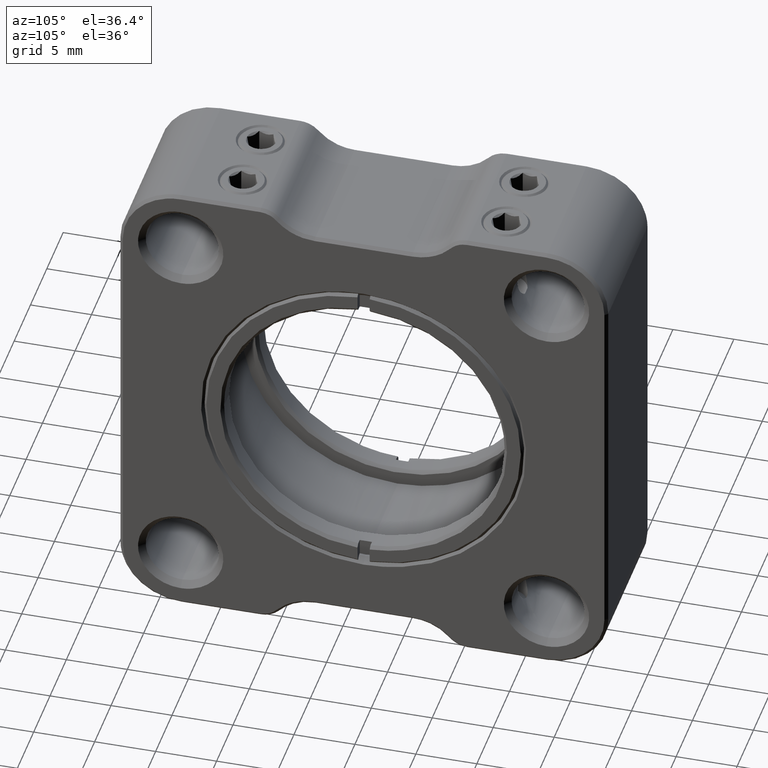
[diagram: clean part render]
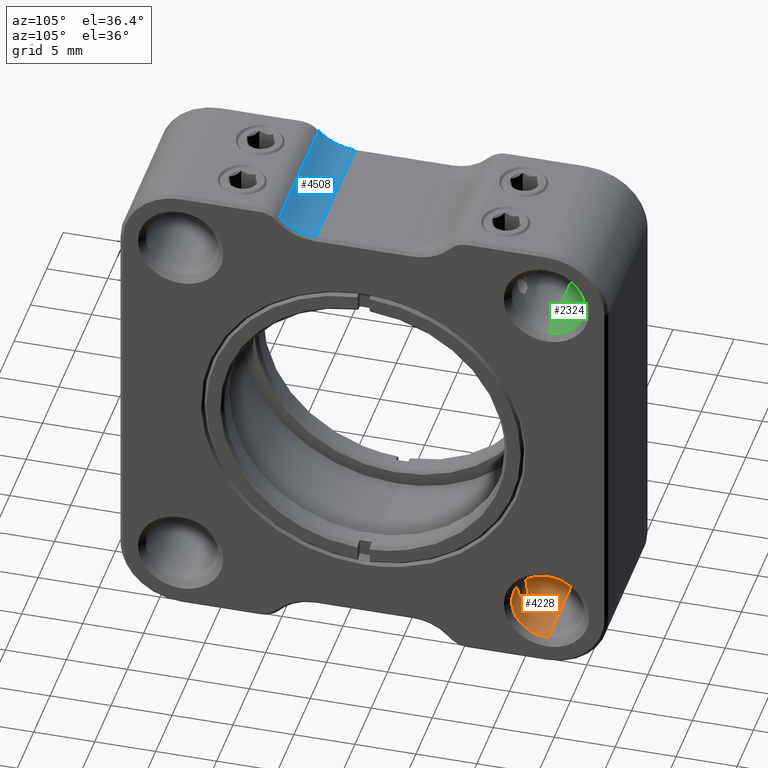
[diagram: same view with three faces highlighted in distinct colors, each labeled with its STEP entity id]
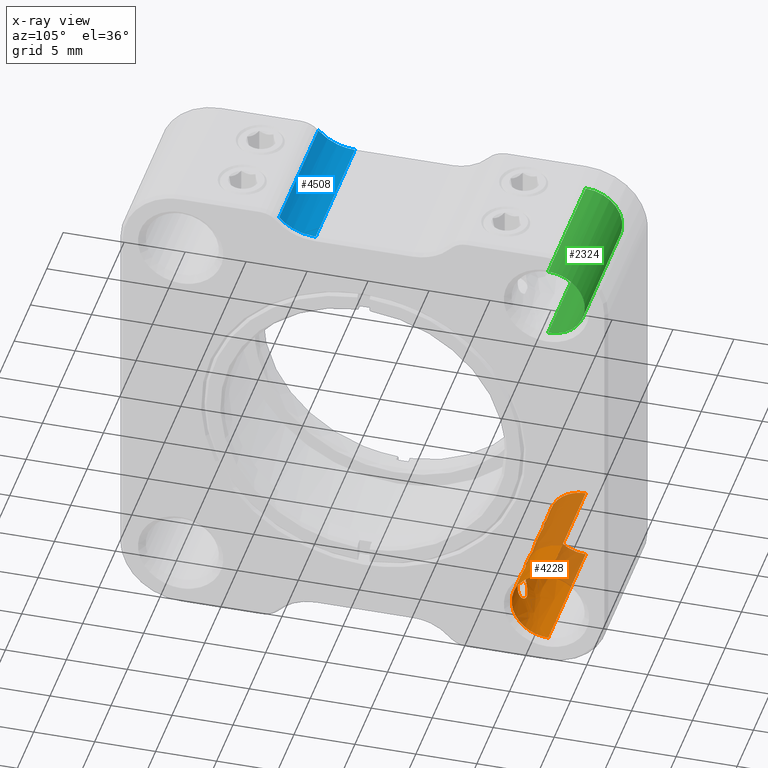
[diagram: x-ray of the same camera — body ghosted, the three highlighted faces saturated]
A machine part, auxiliary view with three faces highlighted in distinct colors.
The next image is the same camera in x-ray (body ghosted, the three faces saturated) — at least one of them is partly hidden behind the body in this view.
Their STEP definitions:

[orange] entity #4228 — the highlighted face is a freeform B-spline surface patch.
#34 = CARTESIAN_POINT ( 'NONE',  ( -12.25262887400384137, 14.53358202448511172, 23.46182062092848142 ) ) ;
#42 = CARTESIAN_POINT ( 'NONE',  ( -18.59430737897091035, 14.10746155510007682, 25.13367493556328469 ) ) ;
#93 = CARTESIAN_POINT ( 'NONE',  ( -12.98803797754453626, 14.19966360962455454, 24.26817190818023207 ) ) ;
#101 = CARTESIAN_POINT ( 'NONE',  ( -18.34169044953239336, 14.30469775038137215, 23.93288609939558853 ) ) ;
#154 = CARTESIAN_POINT ( 'NONE',  ( -12.78557639663588219, 14.33774293012212553, 26.14833280723340891 ) ) ;
#214 = CARTESIAN_POINT ( 'NONE',  ( -10.87246764228729923, 14.15056359219087589, 24.50200661620399600 ) ) ;
#235 = B_SPLINE_CURVE_WITH_KNOTS ( 'NONE', 1,
 ( #9235, #1890 ),
 .UNSPECIFIED., .F., .F.,
 ( 2, 2 ),
 ( 0.000000000000000000, 1.000000000000000000 ),
 .UNSPECIFIED. ) ;
#273 = B_SPLINE_CURVE_WITH_KNOTS ( 'NONE', 3,
 ( #1874, #4736, #1147, #7469 ),
 .UNSPECIFIED., .F., .F.,
 ( 4, 4 ),
 ( 0.000000000000000000, 1.000000000000000000 ),
 .UNSPECIFIED. ) ;
#274 = CARTESIAN_POINT ( 'NONE',  ( -12.88044855864925431, 14.27905518631657422, 24.00200246829884776 ) ) ;
#293 = CARTESIAN_POINT ( 'NONE',  ( -20.45960063692990261, 17.10930122340910131, 28.00000000000000000 ) ) ;
#438 = CARTESIAN_POINT ( 'NONE',  ( -18.52654711595964443, 14.16797507458910133, 25.59197895539838186 ) ) ;
#520 = VERTEX_POINT ( 'NONE', #9697 ) ;
#641 = CARTESIAN_POINT ( 'NONE',  ( -16.39915385318330721, 14.17346130316745167, 24.38139214740200700 ) ) ;
#688 = EDGE_CURVE ( 'NONE', #8241, #8076, #11129, .T. ) ;
#701 = CARTESIAN_POINT ( 'NONE',  ( -16.96346191434548345, 14.48306249049365846, 23.54988928702169204 ) ) ;
#762 = CARTESIAN_POINT ( 'NONE',  ( -18.16636738768076142, 14.40061392428326137, 23.70964000153847095 ) ) ;
#816 = CARTESIAN_POINT ( 'NONE',  ( -10.98668170599601268, 14.24197989447138468, 25.88250952784251879 ) ) ;
#822 = CARTESIAN_POINT ( 'NONE',  ( -16.73495620037148157, 14.39174476668270408, 26.27081948688023161 ) ) ;
#878 = CARTESIAN_POINT ( 'NONE',  ( -11.42048517167480703, 14.47026211184737221, 26.42797066612072854 ) ) ;
#883 = CARTESIAN_POINT ( 'NONE',  ( -16.94718901762852425, 14.47782071443305796, 23.55940860055300234 ) ) ;
#888 = CARTESIAN_POINT ( 'NONE',  ( -8.959600636929959450, 17.10930122340910131, 28.00000000000000000 ) ) ;
#933 = CARTESIAN_POINT ( 'NONE',  ( -12.63079420875968495, 14.42146845775170760, 26.34009055916668629 ) ) ;
#940 = CARTESIAN_POINT ( 'NONE',  ( -18.47459705293780985, 14.21030179623398126, 24.22697595954477379 ) ) ;
#993 = CARTESIAN_POINT ( 'NONE',  ( -11.44718901761471841, 14.47782071442860996, 23.55940860056367470 ) ) ;
#999 = CARTESIAN_POINT ( 'NONE',  ( -18.27246874449389580, 14.34525197973999155, 23.83364511821620724 ) ) ;
#1026 = EDGE_CURVE ( 'NONE', #8399, #8013, #7973, .T. ) ;
#1049 = CARTESIAN_POINT ( 'NONE',  ( -11.63098870628357240, 14.53371382485297580, 23.45884865012373410 ) ) ;
#1106 = CARTESIAN_POINT ( 'NONE',  ( -12.94614245696694255, 14.23200884503895658, 24.14956576262314769 ) ) ;
#1147 = CARTESIAN_POINT ( 'NONE',  ( -17.59140022189297170, 14.52761740423951764, 26.52839245611982122 ) ) ;
#1162 = CARTESIAN_POINT ( 'NONE',  ( -12.13207376816390948, 14.55227647972594518, 23.43079639372447076 ) ) ;
#1171 = EDGE_CURVE ( 'NONE', #11643, #8013, #4903, .T. ) ;
#1179 = FACE_BOUND ( 'NONE', #2190, .T. ) ;
#1374 = CARTESIAN_POINT ( 'NONE',  ( -12.35499939181899975, 14.51122501205579951, 26.50000000000000000 ) ) ;
#1475 = CARTESIAN_POINT ( 'NONE',  ( -17.06420188204090138, 14.51122501205579951, 26.50000000000000000 ) ) ;
#1506 = CARTESIAN_POINT ( 'NONE',  ( -20.45960063692991326, 11.10930122340910309, 22.00000000000001421 ) ) ;
#1596 = CARTESIAN_POINT ( 'NONE',  ( -16.81710982292614176, 14.42941934074558041, 23.65108306665503690 ) ) ;
#1654 = CARTESIAN_POINT ( 'NONE',  ( -17.75262887396024070, 14.53358202449297920, 23.46182062091871856 ) ) ;
#1708 = CARTESIAN_POINT ( 'NONE',  ( -11.24936720597554718, 14.39870795767063605, 26.28563152955916848 ) ) ;
#1714 = CARTESIAN_POINT ( 'NONE',  ( -16.69192916000470106, 14.36991016285383083, 26.22297459696130417 ) ) ;
#1828 = CARTESIAN_POINT ( 'NONE',  ( -12.98287405019457630, 14.20380082374903985, 25.74793581062802161 ) ) ;
#1857 = ORIENTED_EDGE ( 'NONE', *, *, #10409, .F. ) ;
#1874 = CARTESIAN_POINT ( 'NONE',  ( -17.06420188204090138, 14.51122501205579951, 26.50000000000000000 ) ) ;
#1889 = CARTESIAN_POINT ( 'NONE',  ( -12.66636738768628767, 14.40061392428063769, 23.70964000155425921 ) ) ;
#1890 = CARTESIAN_POINT ( 'NONE',  ( -20.45960063692990261, 17.10930122340910131, 28.00000000000000000 ) ) ;
#1896 = CARTESIAN_POINT ( 'NONE',  ( -18.51665680532770963, 14.17632015090679332, 25.63188263651609233 ) ) ;
#1948 = CARTESIAN_POINT ( 'NONE',  ( -12.77246874449553182, 14.34525197973906607, 23.83364511822115617 ) ) ;
#1999 = CARTESIAN_POINT ( 'NONE',  ( -11.07254154885250941, 14.30061804955210647, 23.94551366291485195 ) ) ;
#2059 = CARTESIAN_POINT ( 'NONE',  ( -10.89915385318442809, 14.17346130316838959, 24.38139214738272642 ) ) ;
#2121 = EDGE_LOOP ( 'NONE', ( #9498, #7796, #9202, #10872 ) ) ;
#2122 = CARTESIAN_POINT ( 'NONE',  ( -12.35499939181899975, 14.51122501205579951, 26.50000000000000000 ) ) ;
#2172 = CARTESIAN_POINT ( 'NONE',  ( -18.28557639665012147, 14.33774293011392054, 26.14833280720710817 ) ) ;
#2190 = EDGE_LOOP ( 'NONE', ( #8301, #8631 ) ) ;
#2246 = CARTESIAN_POINT ( 'NONE',  ( -8.959600636929959450, 17.10930122340910131, 22.00000000000000000 ) ) ;
#2303 = CARTESIAN_POINT ( 'NONE',  ( -20.45960063692990261, 17.10930122340910131, 22.00000000000000000 ) ) ;
#2491 = CARTESIAN_POINT ( 'NONE',  ( -16.38062323881584348, 14.15768252043823949, 24.46149670932013720 ) ) ;
#2547 = CARTESIAN_POINT ( 'NONE',  ( -11.56420188204089960, 14.51122501205579951, 26.50000000000000000 ) ) ;
#2553 = CARTESIAN_POINT ( 'NONE',  ( -16.36560387120196935, 14.14469603534065278, 25.46705120715436266 ) ) ;
#2603 = EDGE_CURVE ( 'NONE', #8241, #8076, #9008, .T. ) ;
#2612 = CARTESIAN_POINT ( 'NONE',  ( -17.54903844963694581, 14.55903438774773662, 23.42022599269795791 ) ) ;
#2666 = CARTESIAN_POINT ( 'NONE',  ( -10.82608864588799236, 14.10832342864082634, 24.96277841753453330 ) ) ;
#2673 = CARTESIAN_POINT ( 'NONE',  ( -16.45565571071853839, 14.21875385388558044, 25.80303900791119887 ) ) ;
#2725 = CARTESIAN_POINT ( 'NONE',  ( -17.92716270387990107, 14.49177345012306972, 23.53423861067438949 ) ) ;
#2773 = CARTESIAN_POINT ( 'NONE',  ( -11.79592361645600995, 14.55981156158672007, 23.41885204099245144 ) ) ;
#2829 = CARTESIAN_POINT ( 'NONE',  ( -11.02492861284226855, 14.26919731711929451, 24.03259404563061352 ) ) ;
#2837 = CARTESIAN_POINT ( 'NONE',  ( -18.29692037762362844, 14.33111677567705478, 26.13225326974684037 ) ) ;
#2889 = CARTESIAN_POINT ( 'NONE',  ( -11.31710982288401901, 14.42941934072777244, 23.65108306668920335 ) ) ;
#2951 = CARTESIAN_POINT ( 'NONE',  ( -12.93070428603525457, 14.24342243460140089, 24.11189739267000220 ) ) ;
#3013 = CARTESIAN_POINT ( 'NONE',  ( -11.41335266676700932, 14.46636005865272523, 23.58050295227905835 ) ) ;
#3062 = CARTESIAN_POINT ( 'NONE',  ( -18.56619096036804706, 14.13327824475831740, 25.38799204345440685 ) ) ;
#3090 = CARTESIAN_POINT ( 'NONE',  ( -20.45960063692991326, 11.10930122340910131, 22.00000000000001066 ) ) ;
#3108 = CARTESIAN_POINT ( 'NONE',  ( -11.82780105196693654, 14.52761740423951764, 26.52839245611982122 ) ) ;
#3165 = VERTEX_POINT ( 'NONE', #11559 ) ;
#3381 = CARTESIAN_POINT ( 'NONE',  ( -10.82836688898380118, 14.11050270685513119, 24.87986693128714322 ) ) ;
#3387 = CARTESIAN_POINT ( 'NONE',  ( -16.51146502824562390, 14.25983949144922569, 25.93935048850395120 ) ) ;
#3444 = CARTESIAN_POINT ( 'NONE',  ( -11.08645587244916442, 14.31009155878029127, 26.08194896094222059 ) ) ;
#3451 = CARTESIAN_POINT ( 'NONE',  ( -17.29592361651550192, 14.55981156158654066, 23.41885204100550411 ) ) ;
#3570 = CARTESIAN_POINT ( 'NONE',  ( -16.62993684945782746, 14.33665034933630800, 26.14747699684585669 ) ) ;
#3619 = CARTESIAN_POINT ( 'NONE',  ( -11.12993684946112261, 14.33665034933807192, 26.14747699685290527 ) ) ;
#3622 = CARTESIAN_POINT ( 'NONE',  ( -11.56420188204089960, 14.51122501205579951, 26.50000000000000000 ) ) ;
#3626 = CARTESIAN_POINT ( 'NONE',  ( -16.79356502561259745, 14.41925233205222590, 26.32848355505742077 ) ) ;
#3676 = CARTESIAN_POINT ( 'NONE',  ( -12.51432571737983146, 14.46496900332419244, 23.58237014539562537 ) ) ;
#3734 = CARTESIAN_POINT ( 'NONE',  ( -13.06619096037050198, 14.13327824475605077, 25.38799204345709626 ) ) ;
#3741 = CARTESIAN_POINT ( 'NONE',  ( -18.35034537796843779, 14.29840156239237459, 26.04911163112564054 ) ) ;
#3789 = CARTESIAN_POINT ( 'NONE',  ( -12.57845656640085075, 14.44019919047957679, 23.62862706985244543 ) ) ;
#3852 = CARTESIAN_POINT ( 'NONE',  ( -13.07264073305299412, 14.12746394021304752, 24.62990948602973873 ) ) ;
#3908 = CARTESIAN_POINT ( 'NONE',  ( -12.75087912656180933, 14.35726782066725704, 26.19432004937850067 ) ) ;
#3926 = CARTESIAN_POINT ( 'NONE',  ( -20.45960063692991326, 11.10930122340910131, 27.99999999999998934 ) ) ;
#4072 = CARTESIAN_POINT ( 'NONE',  ( -17.85499939181899975, 14.51122501205579951, 26.50000000000000000 ) ) ;
#4150 = CARTESIAN_POINT ( 'NONE',  ( -20.45960063692990261, 17.10930122340910131, 22.00000000000000000 ) ) ;
#4228 = ADVANCED_FACE ( 'NONE', ( #9362, #1179, #4824 ), #6774, .T. ) ;
#4279 = CARTESIAN_POINT ( 'NONE',  ( -10.85230705488143244, 14.13263874546639975, 25.38243964333958758 ) ) ;
#4284 = CARTESIAN_POINT ( 'NONE',  ( -16.70676952334188314, 14.37763147673853226, 26.24013933317395342 ) ) ;
#4347 = CARTESIAN_POINT ( 'NONE',  ( -16.35230705487830605, 14.13263874546352739, 25.38243964338701630 ) ) ;
#4407 = CARTESIAN_POINT ( 'NONE',  ( -18.23420411326712909, 14.36625498263014578, 23.78490247463961893 ) ) ;
#4469 = CARTESIAN_POINT ( 'NONE',  ( -17.79215281703012863, 14.52593018047548590, 23.47469013426653106 ) ) ;
#4519 = CARTESIAN_POINT ( 'NONE',  ( -11.20676952334409648, 14.37763147673967445, 26.24013933317499436 ) ) ;
#4524 = CARTESIAN_POINT ( 'NONE',  ( -17.86941807337634103, 14.50771763697471783, 23.50611739559175817 ) ) ;
#4555 = EDGE_CURVE ( 'NONE', #11643, #3165, #235, .T. ) ;
#4579 = CARTESIAN_POINT ( 'NONE',  ( -11.22818040090955805, 14.38975337909512398, 23.73187906406898406 ) ) ;
#4585 = CARTESIAN_POINT ( 'NONE',  ( -18.59705878920894762, 14.10469555667444652, 24.96715504196764002 ) ) ;
#4634 = CARTESIAN_POINT ( 'NONE',  ( -12.35025005273416987, 14.51251302110160246, 23.49778656071450911 ) ) ;
#4691 = CARTESIAN_POINT ( 'NONE',  ( -12.82985403283880821, 14.31137621363409984, 26.08310000696892672 ) ) ;
#4736 = CARTESIAN_POINT ( 'NONE',  ( -17.32780105196694009, 14.52761740423951764, 26.52839245611981411 ) ) ;
#4750 = CARTESIAN_POINT ( 'NONE',  ( -12.73420411327069246, 14.36625498262824685, 23.78490247465015628 ) ) ;
#4808 = CARTESIAN_POINT ( 'NONE',  ( -10.97415601042787259, 14.23335394188370984, 24.14251974891486086 ) ) ;
#4824 = FACE_OUTER_BOUND ( 'NONE', #2121, .T. ) ;
#4849 = CARTESIAN_POINT ( 'NONE',  ( -18.48803797754281319, 14.19966360962595608, 24.26817190816621306 ) ) ;
#4903 =( BOUNDED_CURVE ( )  B_SPLINE_CURVE ( 3, ( #9061, #9771, #7914, #11551 ),
 .UNSPECIFIED., .F., .F. ) 
 B_SPLINE_CURVE_WITH_KNOTS ( ( 4, 4 ),
 ( 0.000000000000000000, 1.000000000000000000 ),
 .UNSPECIFIED. ) 
 CURVE ( )  GEOMETRIC_REPRESENTATION_ITEM ( )  RATIONAL_B_SPLINE_CURVE ( ( 1.000000000000000000, 0.3333333333333329818, 0.3333333333333329818, 1.000000000000000000 ) ) 
 REPRESENTATION_ITEM ( '' )  );
#4964 = CARTESIAN_POINT ( 'NONE',  ( -18.28557650064970730, 14.33773865347519383, 23.85167428068081819 ) ) ;
#5168 = CARTESIAN_POINT ( 'NONE',  ( -10.90047237521796397, 14.17471680337231987, 25.62881491204115036 ) ) ;
#5169 = CARTESIAN_POINT ( 'NONE',  ( -8.959600636929952344, 11.10930122340910131, 22.00000000000001066 ) ) ;
#5174 = CARTESIAN_POINT ( 'NONE',  ( -16.32608864589259312, 14.10832342864517486, 24.96277841746345771 ) ) ;
#5238 = CARTESIAN_POINT ( 'NONE',  ( -16.84813669375799705, 14.44221069357771015, 23.62609695000169552 ) ) ;
#5289 = CARTESIAN_POINT ( 'NONE',  ( -10.84102091145197200, 14.12229512037430723, 24.70867478441958909 ) ) ;
#5299 = CARTESIAN_POINT ( 'NONE',  ( -17.85025005270566822, 14.51251302110858887, 23.49778656070799343 ) ) ;
#5354 = CARTESIAN_POINT ( 'NONE',  ( -16.42221087055679263, 14.19283859094603883, 25.70747960096321094 ) ) ;
#5414 = CARTESIAN_POINT ( 'NONE',  ( -16.46341042469103044, 14.22467058531094253, 25.82406545597264369 ) ) ;
#5468 = CARTESIAN_POINT ( 'NONE',  ( -12.90773975263167372, 14.26046220533579501, 25.94348790201122767 ) ) ;
#5478 = CARTESIAN_POINT ( 'NONE',  ( -18.44614245698508981, 14.23200884502536923, 24.14956576265953103 ) ) ;
#5527 = CARTESIAN_POINT ( 'NONE',  ( -11.10370973166637221, 14.32001142101341173, 23.89535795442018085 ) ) ;
#5589 = CARTESIAN_POINT ( 'NONE',  ( -12.99452626272070077, 14.19446022324795820, 25.71069699734150760 ) ) ;
#5641 = CARTESIAN_POINT ( 'NONE',  ( -11.17444431252291892, 14.36161106474641080, 23.79352659220378641 ) ) ;
#5680 = CARTESIAN_POINT ( 'NONE',  ( -12.09140022189296992, 14.52761740423951764, 26.52839245611982122 ) ) ;
#5701 = CARTESIAN_POINT ( 'NONE',  ( -11.39678542886688639, 14.46044239717635271, 23.59153659875433462 ) ) ;
#5786 = VERTEX_POINT ( 'NONE', #6879 ) ;
#5810 = CARTESIAN_POINT ( 'NONE',  ( -18.57264073305221075, 14.12746394021379182, 24.62990948598766749 ) ) ;
#6129 = CARTESIAN_POINT ( 'NONE',  ( -16.40047237519726053, 14.17471680335498796, 25.62881491197807904 ) ) ;
#6190 = CARTESIAN_POINT ( 'NONE',  ( -17.63207376811955740, 14.55227647973060812, 23.43079639371470435 ) ) ;
#6248 = CARTESIAN_POINT ( 'NONE',  ( -18.01432571737581867, 14.46496900332542701, 23.58237014538510223 ) ) ;
#6315 = CARTESIAN_POINT ( 'NONE',  ( -16.52921605718029241, 14.27216892411096971, 25.97596197332747536 ) ) ;
#6368 = CARTESIAN_POINT ( 'NONE',  ( -11.19192916000388749, 14.36991016285338851, 26.22297459695949229 ) ) ;
#6374 = CARTESIAN_POINT ( 'NONE',  ( -18.07845656639510779, 14.44019919048190204, 23.62862706983665007 ) ) ;
#6422 = CARTESIAN_POINT ( 'NONE',  ( -12.40733057018516838, 14.49751508471321593, 23.52404311750225929 ) ) ;
#6429 = CARTESIAN_POINT ( 'NONE',  ( -18.25087912655805056, 14.35726782066926077, 26.19432004938035874 ) ) ;
#6479 = CARTESIAN_POINT ( 'NONE',  ( -11.34813669371881772, 14.44221069356224696, 23.62609695003300558 ) ) ;
#6537 = CARTESIAN_POINT ( 'NONE',  ( -12.04903844966670334, 14.55903438774765135, 23.42022599270445937 ) ) ;
#6592 = CARTESIAN_POINT ( 'NONE',  ( -12.76213076858724982, 14.35104567125037001, 26.17988211518229491 ) ) ;
#6646 = CARTESIAN_POINT ( 'NONE',  ( -18.00333251472570595, 14.47461232640758766, 26.43658496825579718 ) ) ;
#6652 = CARTESIAN_POINT ( 'NONE',  ( -13.02654711596352222, 14.16797507458580974, 25.59197895540241419 ) ) ;
#6704 = CARTESIAN_POINT ( 'NONE',  ( -18.54541375035087469, 14.15308782247098129, 24.46479407687705532 ) ) ;
#6730 = CARTESIAN_POINT ( 'NONE',  ( -20.45960063692990261, 17.10930122340910131, 22.00000000000000000 ) ) ;
#6733 = ORIENTED_EDGE ( 'NONE', *, *, #10969, .T. ) ;
#6774 =( BOUNDED_SURFACE ( )  B_SPLINE_SURFACE ( 1, 3, ( 
 ( #293, #3926, #3090, #6730 ),
 ( #7568, #10380, #5169, #7864 ) ),
 .UNSPECIFIED., .F., .F., .F. ) 
 B_SPLINE_SURFACE_WITH_KNOTS ( ( 2, 2 ),
 ( 4, 4 ),
 ( 0.000000000000000000, 1.000000000000000000 ),
 ( 0.000000000000000000, 1.000000000000000000 ),
 .UNSPECIFIED. ) 
 GEOMETRIC_REPRESENTATION_ITEM ( )  RATIONAL_B_SPLINE_SURFACE ( (
 ( 1.000000000000000000, 0.3333333333333329818, 0.3333333333333329818, 1.000000000000000000),
 ( 1.000000000000000000, 0.3333333333333329818, 0.3333333333333329818, 1.000000000000000000) ) ) 
 REPRESENTATION_ITEM ( '' )  SURFACE ( )  );
#6818 = CARTESIAN_POINT ( 'NONE',  ( -18.55294322343230817, 14.14527881202999282, 25.47077840992680109 ) ) ;
#6879 = CARTESIAN_POINT ( 'NONE',  ( -17.85499939181899975, 14.51122501205579951, 26.50000000000000000 ) ) ;
#7023 = CARTESIAN_POINT ( 'NONE',  ( -16.67444431254843451, 14.36161106476135174, 23.79352659218101351 ) ) ;
#7081 = CARTESIAN_POINT ( 'NONE',  ( -10.96341042469235560, 14.22467058531194262, 25.82406545597594416 ) ) ;
#7087 = CARTESIAN_POINT ( 'NONE',  ( -16.35111694672353266, 14.13164551751133047, 24.62490921486102025 ) ) ;
#7149 = CARTESIAN_POINT ( 'NONE',  ( -16.47872784594637707, 14.23613205855680697, 25.86324191870711076 ) ) ;
#7204 = CARTESIAN_POINT ( 'NONE',  ( -10.86560387122197113, 14.14469603535837372, 25.46705120721741977 ) ) ;
#7208 = CARTESIAN_POINT ( 'NONE',  ( -16.58645587244449970, 14.31009155877738159, 26.08194896093162640 ) ) ;
#7258 = CARTESIAN_POINT ( 'NONE',  ( -11.02921605718476172, 14.27216892411402327, 25.97596197333806245 ) ) ;
#7263 = CARTESIAN_POINT ( 'NONE',  ( -16.61367097185330977, 14.32602328412040649, 23.88031541473005959 ) ) ;
#7311 = CARTESIAN_POINT ( 'NONE',  ( -12.97459705292654597, 14.21030179624282752, 24.22697595952161365 ) ) ;
#7373 = CARTESIAN_POINT ( 'NONE',  ( -13.01665680533131031, 14.17632015090379838, 25.63188263651978005 ) ) ;
#7431 = CARTESIAN_POINT ( 'NONE',  ( -11.08269021857582359, 14.30704248040900772, 23.92860657799907997 ) ) ;
#7469 = CARTESIAN_POINT ( 'NONE',  ( -17.85499939181899975, 14.51122501205579951, 26.50000000000000000 ) ) ;
#7488 = CARTESIAN_POINT ( 'NONE',  ( -13.09430737896599339, 14.10746155510457989, 25.13367493555788812 ) ) ;
#7550 = CARTESIAN_POINT ( 'NONE',  ( -11.04313908585015547, 14.28157800714855519, 23.99708323704114576 ) ) ;
#7568 = CARTESIAN_POINT ( 'NONE',  ( -8.959600636929959450, 17.10930122340910131, 28.00000000000000000 ) ) ;
#7796 = ORIENTED_EDGE ( 'NONE', *, *, #1171, .T. ) ;
#7864 = CARTESIAN_POINT ( 'NONE',  ( -8.959600636929959450, 17.10930122340910131, 22.00000000000000000 ) ) ;
#7914 = CARTESIAN_POINT ( 'NONE',  ( -8.959600636929952344, 11.10930122340910309, 22.00000000000001421 ) ) ;
#7924 = CARTESIAN_POINT ( 'NONE',  ( -10.82888067415516531, 14.11095676817109279, 25.13090013560021418 ) ) ;
#7931 = CARTESIAN_POINT ( 'NONE',  ( -16.34102091145075164, 14.12229512037317924, 24.70867478444158749 ) ) ;
#7973 = B_SPLINE_CURVE_WITH_KNOTS ( 'NONE', 1,
 ( #4150, #2246 ),
 .UNSPECIFIED., .F., .F.,
 ( 2, 2 ),
 ( 0.000000000000000000, 1.000000000000000000 ),
 .UNSPECIFIED. ) ;
#7984 = CARTESIAN_POINT ( 'NONE',  ( -11.32431822901474483, 14.43248944461528005, 26.35493943535526284 ) ) ;
#7991 = CARTESIAN_POINT ( 'NONE',  ( -16.54313908584507686, 14.28157800714518189, 23.99708323703148594 ) ) ;
#8013 = VERTEX_POINT ( 'NONE', #10928 ) ;
#8052 = CARTESIAN_POINT ( 'NONE',  ( -18.24717489643710167, 14.35927912691784591, 23.80082703513670239 ) ) ;
#8076 = VERTEX_POINT ( 'NONE', #8761 ) ;
#8109 = CARTESIAN_POINT ( 'NONE',  ( -16.91335266679157812, 14.46636005866128194, 23.58050295225984883 ) ) ;
#8141 = CARTESIAN_POINT ( 'NONE',  ( -20.45960063692990261, 17.10930122340910131, 28.00000000000000000 ) ) ;
#8167 = CARTESIAN_POINT ( 'NONE',  ( -16.57254154884875064, 14.30061804954971727, 23.94551366290784244 ) ) ;
#8214 = CARTESIAN_POINT ( 'NONE',  ( -12.42716270387892052, 14.49177345012337170, 23.53423861067175693 ) ) ;
#8222 = CARTESIAN_POINT ( 'NONE',  ( -18.48287405018718133, 14.20380082375475617, 25.74793581064359316 ) ) ;
#8241 = VERTEX_POINT ( 'NONE', #3622 ) ;
#8274 = CARTESIAN_POINT ( 'NONE',  ( -12.84169044951770999, 14.30469775039002123, 23.93288609936913147 ) ) ;
#8301 = ORIENTED_EDGE ( 'NONE', *, *, #688, .T. ) ;
#8313 = EDGE_LOOP ( 'NONE', ( #6733, #1857 ) ) ;
#8335 = CARTESIAN_POINT ( 'NONE',  ( -12.79692037760686851, 14.33111677568691178, 26.13225326977800478 ) ) ;
#8392 = CARTESIAN_POINT ( 'NONE',  ( -12.74717489644007529, 14.35927912691621700, 23.80082703514558062 ) ) ;
#8399 = VERTEX_POINT ( 'NONE', #2303 ) ;
#8453 = CARTESIAN_POINT ( 'NONE',  ( -12.36941807340027033, 14.50771763696851480, 23.50611739559725422 ) ) ;
#8618 = CARTESIAN_POINT ( 'NONE',  ( -18.43070428605533806, 14.24342243458677082, 24.11189739270969312 ) ) ;
#8631 = ORIENTED_EDGE ( 'NONE', *, *, #2603, .F. ) ;
#8684 = B_SPLINE_CURVE_WITH_KNOTS ( 'NONE', 3,
 ( #1475, #8890, #11756, #10748, #3626, #9909, #822, #4284, #1714, #3570, #7208, #6315, #3387, #10863, #7149, #5414, #2673, #5354, #6129, #2553, #4347, #11693, #10681, #5174, #9785, #7931, #7087, #9069, #2491, #641, #8827, #9968, #11566, #9847, #7991, #8167, #11818, #11632, #7263, #7023, #9013, #1596, #5238, #10804, #8109, #883, #701, #10926, #3451, #2612, #6190, #1654, #4469, #5299, #4524, #8951, #2725, #6248, #6374, #762, #10030, #4407, #8052, #999, #4964, #101, #10093, #8618, #5478, #940, #4849, #6704, #5810, #4585, #42, #3062, #6818, #438, #1896, #11244, #8222, #10977, #10356, #3741, #9512, #2837, #2172, #11359, #6429, #9452, #6646, #4072 ),
 .UNSPECIFIED., .F., .F.,
 ( 4, 2, 2, 2, 2, 2, 2, 2, 2, 2, 2, 2, 2, 2, 2, 2, 2, 2, 2, 2, 2, 2, 2, 2, 2, 2, 2, 2, 2, 2, 2, 2, 2, 2, 2, 2, 2, 2, 2, 2, 2, 2, 2, 2, 2, 4 ),
 ( 0.000000000000000000, 0.03125000000000671685, 0.04687500000001005446, 0.05468750000001182388, 0.06250000000001358635, 0.09375000000002081668, 0.1093750000000249800, 0.1171875000000265066, 0.1250000000000280331, 0.1562500000000329459, 0.1875000000000378586, 0.2187500000000427713, 0.2500000000000476841, 0.2812500000000525691, 0.2968750000000550116, 0.3125000000000575096, 0.3437500000000635603, 0.3593750000000670020, 0.3671875000000687783, 0.3750000000000704992, 0.4062500000000748290, 0.4218750000000769385, 0.4296875000000771605, 0.4375000000000773270, 0.5000000000000732747, 0.5312500000000711653, 0.5468750000000696110, 0.5546875000000681677, 0.5625000000000667244, 0.5937500000000612843, 0.6093750000000591749, 0.6171875000000581757, 0.6250000000000571765, 0.6562500000000512923, 0.6718750000000487388, 0.6875000000000460743, 0.7500000000000348610, 0.8125000000000236478, 0.8437500000000178746, 0.8593750000000148770, 0.8750000000000117684, 0.9062500000000065503, 0.9218750000000043299, 0.9296875000000034417, 0.9375000000000025535, 1.000000000000000000 ),
 .UNSPECIFIED. ) ;
#8761 = CARTESIAN_POINT ( 'NONE',  ( -12.35499939181899975, 14.51122501205579951, 26.50000000000000000 ) ) ;
#8798 = CARTESIAN_POINT ( 'NONE',  ( -20.45960063692991326, 11.10930122340910309, 27.99999999999998934 ) ) ;
#8821 = CARTESIAN_POINT ( 'NONE',  ( -10.95565571071493238, 14.21875385388278445, 25.80303900790065796 ) ) ;
#8827 = CARTESIAN_POINT ( 'NONE',  ( -16.40892896049545158, 14.18163544037074608, 24.34382673447668211 ) ) ;
#8890 = CARTESIAN_POINT ( 'NONE',  ( -16.98984146273704354, 14.49287081979387537, 26.46820960647052345 ) ) ;
#8951 = CARTESIAN_POINT ( 'NONE',  ( -17.90733057017199314, 14.49751508471699779, 23.52404311749921817 ) ) ;
#9007 = CARTESIAN_POINT ( 'NONE',  ( -10.92221087057120421, 14.19283859095720501, 25.70747960100524310 ) ) ;
#9008 = B_SPLINE_CURVE_WITH_KNOTS ( 'NONE', 3,
 ( #2547, #10800, #878, #7984, #10025, #1708, #11626, #4519, #6368, #3619, #3444, #7258, #10739, #816, #10918, #7081, #8821, #9007, #5168, #7204, #4279, #10857, #7924, #2666, #3381, #5289, #10191, #214, #11086, #2059, #10087, #9345, #4808, #2829, #7550, #1999, #7431, #5527, #11198, #5641, #4579, #2889, #6479, #5701, #3013, #993, #9289, #1049, #2773, #6537, #1162, #34, #10971, #4634, #8453, #6422, #8214, #3676, #3789, #1889, #11029, #4750, #8392, #1948, #9180, #8274, #274, #2951, #1106, #7311, #93, #10246, #3852, #10138, #7488, #3734, #11142, #6652, #7373, #5589, #1828, #9234, #5468, #9120, #4691, #8335, #154, #6592, #3908, #933, #10306, #2122 ),
 .UNSPECIFIED., .F., .F.,
 ( 4, 2, 2, 2, 2, 2, 2, 2, 2, 2, 2, 2, 2, 2, 2, 2, 2, 2, 2, 2, 2, 2, 2, 2, 2, 2, 2, 2, 2, 2, 2, 2, 2, 2, 2, 2, 2, 2, 2, 2, 2, 2, 2, 2, 2, 4 ),
 ( 0.000000000000000000, 0.03125000000000053429, 0.04687500000000042327, 0.05468750000000079103, 0.06250000000000115186, 0.09375000000000340006, 0.1093750000000038303, 0.1171875000000034833, 0.1250000000000031641, 0.1562500000000047462, 0.1875000000000063560, 0.2187500000000079381, 0.2500000000000094924, 0.2812500000000111022, 0.2968750000000124900, 0.3125000000000139333, 0.3437500000000168199, 0.3593750000000183187, 0.3671875000000184297, 0.3750000000000185962, 0.4062500000000198175, 0.4218750000000199285, 0.4296875000000203171, 0.4375000000000207612, 0.5000000000000276446, 0.5312500000000308642, 0.5468750000000320854, 0.5546875000000329736, 0.5625000000000339728, 0.5937500000000366374, 0.6093750000000375255, 0.6171875000000374145, 0.6250000000000373035, 0.6562500000000356382, 0.6718750000000345279, 0.6875000000000335287, 0.7500000000000293099, 0.8125000000000249800, 0.8437500000000234257, 0.8593750000000226485, 0.8750000000000219824, 0.9062500000000190958, 0.9218750000000174305, 0.9296875000000163203, 0.9375000000000152101, 1.000000000000000000 ),
 .UNSPECIFIED. ) ;
#9013 = CARTESIAN_POINT ( 'NONE',  ( -16.72818040095006964, 14.38975337911515062, 23.73187906403481762 ) ) ;
#9061 = CARTESIAN_POINT ( 'NONE',  ( -8.959600636929959450, 17.10930122340910131, 28.00000000000000000 ) ) ;
#9069 = CARTESIAN_POINT ( 'NONE',  ( -16.37246764228541807, 14.15056359218921145, 24.50200661623700071 ) ) ;
#9120 = CARTESIAN_POINT ( 'NONE',  ( -12.85034537794416387, 14.29840156240794258, 26.04911163117238004 ) ) ;
#9180 = CARTESIAN_POINT ( 'NONE',  ( -12.78557650065339324, 14.33773865347303378, 23.85167428068744755 ) ) ;
#9202 = ORIENTED_EDGE ( 'NONE', *, *, #1026, .F. ) ;
#9234 = CARTESIAN_POINT ( 'NONE',  ( -12.94056965469244247, 14.23650526216433398, 25.86819394687514162 ) ) ;
#9235 = CARTESIAN_POINT ( 'NONE',  ( -8.959600636929959450, 17.10930122340910131, 28.00000000000000000 ) ) ;
#9289 = CARTESIAN_POINT ( 'NONE',  ( -11.46346191434578188, 14.48306249049374195, 23.54988928702327300 ) ) ;
#9345 = CARTESIAN_POINT ( 'NONE',  ( -10.94544360002811345, 14.21121014102018876, 24.22032792112548805 ) ) ;
#9362 = FACE_BOUND ( 'NONE', #8313, .T. ) ;
#9452 = CARTESIAN_POINT ( 'NONE',  ( -18.13079420878968051, 14.42146845773566355, 26.34009055915189634 ) ) ;
#9498 = ORIENTED_EDGE ( 'NONE', *, *, #4555, .F. ) ;
#9512 = CARTESIAN_POINT ( 'NONE',  ( -18.32985403286141946, 14.31137621362015366, 26.08310000692608455 ) ) ;
#9697 = CARTESIAN_POINT ( 'NONE',  ( -17.06420188204090138, 14.51122501205579951, 26.50000000000000000 ) ) ;
#9771 = CARTESIAN_POINT ( 'NONE',  ( -8.959600636929952344, 11.10930122340910309, 27.99999999999998934 ) ) ;
#9785 = CARTESIAN_POINT ( 'NONE',  ( -16.32836688898500910, 14.11050270685625030, 24.87986693126517679 ) ) ;
#9847 = CARTESIAN_POINT ( 'NONE',  ( -16.52492861283680980, 14.26919731711554640, 24.03259404562008328 ) ) ;
#9909 = CARTESIAN_POINT ( 'NONE',  ( -16.74936720597071727, 14.39870795766832146, 26.28563152955689475 ) ) ;
#9968 = CARTESIAN_POINT ( 'NONE',  ( -16.44544360002477390, 14.21121014101748692, 24.22032792111849275 ) ) ;
#10025 = CARTESIAN_POINT ( 'NONE',  ( -11.29356502561934938, 14.41925233205523504, 26.32848355506055427 ) ) ;
#10030 = CARTESIAN_POINT ( 'NONE',  ( -18.19429790619385656, 14.38700861351857263, 23.73858223627647845 ) ) ;
#10087 = CARTESIAN_POINT ( 'NONE',  ( -10.90892896049376226, 14.18163544036937473, 24.34382673447312584 ) ) ;
#10093 = CARTESIAN_POINT ( 'NONE',  ( -18.38044855867012117, 14.27905518630253212, 24.00200246833853512 ) ) ;
#10138 = CARTESIAN_POINT ( 'NONE',  ( -13.09705878920813582, 14.10469555667517838, 24.96715504192556168 ) ) ;
#10191 = CARTESIAN_POINT ( 'NONE',  ( -10.85111694672538007, 14.13164551751300735, 24.62490921482801554 ) ) ;
#10246 = CARTESIAN_POINT ( 'NONE',  ( -13.04541375034398065, 14.15308782247658570, 24.46479407682097218 ) ) ;
#10283 = CARTESIAN_POINT ( 'NONE',  ( -11.56420188204089960, 14.51122501205579951, 26.50000000000000000 ) ) ;
#10306 = CARTESIAN_POINT ( 'NONE',  ( -12.50333251469110785, 14.47461232641612661, 26.43658496827058002 ) ) ;
#10344 =( BOUNDED_CURVE ( )  B_SPLINE_CURVE ( 3, ( #11482, #1506, #8798, #8141 ),
 .UNSPECIFIED., .F., .F. ) 
 B_SPLINE_CURVE_WITH_KNOTS ( ( 4, 4 ),
 ( 0.000000000000000000, 1.000000000000000000 ),
 .UNSPECIFIED. ) 
 CURVE ( )  GEOMETRIC_REPRESENTATION_ITEM ( )  RATIONAL_B_SPLINE_CURVE ( ( 1.000000000000000000, 0.3333333333333329818, 0.3333333333333329818, 1.000000000000000000 ) ) 
 REPRESENTATION_ITEM ( '' )  );
#10356 = CARTESIAN_POINT ( 'NONE',  ( -18.40773975265498663, 14.26046220531942410, 25.94348790196448462 ) ) ;
#10380 = CARTESIAN_POINT ( 'NONE',  ( -8.959600636929952344, 11.10930122340910131, 27.99999999999998934 ) ) ;
#10409 = EDGE_CURVE ( 'NONE', #520, #5786, #8684, .T. ) ;
#10555 = EDGE_CURVE ( 'NONE', #8399, #3165, #10344, .T. ) ;
#10681 = CARTESIAN_POINT ( 'NONE',  ( -16.32888067415977673, 14.11095676817543776, 25.13090013552914570 ) ) ;
#10739 = CARTESIAN_POINT ( 'NONE',  ( -11.01146502824965623, 14.25983949145207141, 25.93935048851365721 ) ) ;
#10748 = CARTESIAN_POINT ( 'NONE',  ( -16.82431822900726104, 14.43248944461216610, 26.35493943535183803 ) ) ;
#10800 = CARTESIAN_POINT ( 'NONE',  ( -11.48984146274241525, 14.49287081979520231, 26.46820960647282561 ) ) ;
#10804 = CARTESIAN_POINT ( 'NONE',  ( -16.89678542889583568, 14.46044239718682078, 23.59153659873157949 ) ) ;
#10857 = CARTESIAN_POINT ( 'NONE',  ( -10.83404545379058526, 14.11585801835380671, 25.21483238076121580 ) ) ;
#10863 = CARTESIAN_POINT ( 'NONE',  ( -16.48668170599313498, 14.24197989446927792, 25.88250952783547731 ) ) ;
#10872 = ORIENTED_EDGE ( 'NONE', *, *, #10555, .T. ) ;
#10918 = CARTESIAN_POINT ( 'NONE',  ( -10.97872784594878581, 14.23613205855858865, 25.86324191871304379 ) ) ;
#10926 = CARTESIAN_POINT ( 'NONE',  ( -17.13098870628576620, 14.53371382485364549, 23.45884865013654164 ) ) ;
#10928 = CARTESIAN_POINT ( 'NONE',  ( -8.959600636929959450, 17.10930122340910131, 22.00000000000000000 ) ) ;
#10969 = EDGE_CURVE ( 'NONE', #520, #5786, #273, .T. ) ;
#10971 = CARTESIAN_POINT ( 'NONE',  ( -12.29215281706976093, 14.52593018046715123, 23.47469013427548390 ) ) ;
#10977 = CARTESIAN_POINT ( 'NONE',  ( -18.44056965470722886, 14.23650526215290313, 25.86819394684398077 ) ) ;
#11029 = CARTESIAN_POINT ( 'NONE',  ( -12.69429790619884280, 14.38700861351607330, 23.73858223629095932 ) ) ;
#11086 = CARTESIAN_POINT ( 'NONE',  ( -10.88062323881758431, 14.15768252043974229, 24.46149670928987163 ) ) ;
#11129 = B_SPLINE_CURVE_WITH_KNOTS ( 'NONE', 3,
 ( #10283, #3108, #5680, #1374 ),
 .UNSPECIFIED., .F., .F.,
 ( 4, 4 ),
 ( 0.000000000000000000, 1.000000000000000000 ),
 .UNSPECIFIED. ) ;
#11142 = CARTESIAN_POINT ( 'NONE',  ( -13.05294322343608293, 14.14527881202664261, 25.47077840993082631 ) ) ;
#11198 = CARTESIAN_POINT ( 'NONE',  ( -11.11367097185966379, 14.32602328412412973, 23.88031541472433261 ) ) ;
#11244 = CARTESIAN_POINT ( 'NONE',  ( -18.49452626271836664, 14.19446022324982692, 25.71069699733915215 ) ) ;
#11359 = CARTESIAN_POINT ( 'NONE',  ( -18.26213076859527717, 14.35104567124593089, 26.17988211516767549 ) ) ;
#11482 = CARTESIAN_POINT ( 'NONE',  ( -20.45960063692990261, 17.10930122340910131, 22.00000000000000000 ) ) ;
#11551 = CARTESIAN_POINT ( 'NONE',  ( -8.959600636929959450, 17.10930122340910131, 22.00000000000000000 ) ) ;
#11559 = CARTESIAN_POINT ( 'NONE',  ( -20.45960063692990261, 17.10930122340910131, 28.00000000000000000 ) ) ;
#11566 = CARTESIAN_POINT ( 'NONE',  ( -16.47415601042262523, 14.23335394187980185, 24.14251974890435193 ) ) ;
#11626 = CARTESIAN_POINT ( 'NONE',  ( -11.23495620037552811, 14.39174476668469183, 26.27081948688215363 ) ) ;
#11632 = CARTESIAN_POINT ( 'NONE',  ( -16.60370973166458342, 14.32001142101233349, 23.89535795441689459 ) ) ;
#11643 = VERTEX_POINT ( 'NONE', #888 ) ;
#11693 = CARTESIAN_POINT ( 'NONE',  ( -16.33404545379371697, 14.11585801835668263, 25.21483238071384747 ) ) ;
#11756 = CARTESIAN_POINT ( 'NONE',  ( -16.92048517166704968, 14.47026211184469524, 26.42797066611730017 ) ) ;
#11818 = CARTESIAN_POINT ( 'NONE',  ( -16.58269021857262970, 14.30704248040701465, 23.92860657799315760 ) ) ;

[blue] entity #4508 — the highlighted face is a freeform B-spline surface patch.
#4 = ORIENTED_EDGE ( 'NONE', *, *, #4331, .F. ) ;
#29 = CARTESIAN_POINT ( 'NONE',  ( -20.70960063692990261, -4.872122746590609843, 59.33333333333330017 ) ) ;
#576 = CARTESIAN_POINT ( 'NONE',  ( -20.70960063692990261, -1.890698776590890029, 58.00000000000000000 ) ) ;
#879 = CARTESIAN_POINT ( 'NONE',  ( -8.709600636929948791, -1.890698776590890029, 58.00000000000000000 ) ) ;
#1402 = B_SPLINE_CURVE_WITH_KNOTS ( 'NONE', 1,
 ( #7807, #4934 ),
 .UNSPECIFIED., .F., .F.,
 ( 2, 2 ),
 ( 0.000000000000000000, 1.000000000000000000 ),
 .UNSPECIFIED. ) ;
#1949 = CARTESIAN_POINT ( 'NONE',  ( -8.709600636929948791, -4.872122746590609843, 59.33333333333330017 ) ) ;
#2306 = ORIENTED_EDGE ( 'NONE', *, *, #10369, .F. ) ;
#2381 = CARTESIAN_POINT ( 'NONE',  ( -8.709600636929938133, -4.872122746590609843, 59.33333333333330017 ) ) ;
#2670 =( BOUNDED_CURVE ( )  B_SPLINE_CURVE ( 3, ( #29, #10733, #3672, #10796 ),
 .UNSPECIFIED., .F., .T. ) 
 B_SPLINE_CURVE_WITH_KNOTS ( ( 4, 4 ),
 ( 0.000000000000000000, 1.000000000000000000 ),
 .UNSPECIFIED. ) 
 CURVE ( )  GEOMETRIC_REPRESENTATION_ITEM ( )  RATIONAL_B_SPLINE_CURVE ( ( 1.000000000000000000, 0.9419139527835180825, 0.9419139527835180825, 1.000000000000000000 ) ) 
 REPRESENTATION_ITEM ( '' )  );
#2698 = CARTESIAN_POINT ( 'NONE',  ( -8.709600636929954121, -4.101590856222458115, 58.47185249048603595 ) ) ;
#2945 = CARTESIAN_POINT ( 'NONE',  ( -8.709600636929948791, -1.890698776590890029, 58.00000000000000000 ) ) ;
#2957 =( BOUNDED_CURVE ( )  B_SPLINE_CURVE ( 3, ( #4378, #11721, #2698, #9097 ),
 .UNSPECIFIED., .F., .F. ) 
 B_SPLINE_CURVE_WITH_KNOTS ( ( 4, 4 ),
 ( 0.000000000000000000, 1.000000000000000000 ),
 .UNSPECIFIED. ) 
 CURVE ( )  GEOMETRIC_REPRESENTATION_ITEM ( )  RATIONAL_B_SPLINE_CURVE ( ( 1.000000000000000000, 0.9419139527835180825, 0.9419139527835180825, 1.000000000000000000 ) ) 
 REPRESENTATION_ITEM ( '' )  );
#3541 = CARTESIAN_POINT ( 'NONE',  ( -20.70960063692990261, -1.890698776590890029, 58.00000000000000000 ) ) ;
#3672 = CARTESIAN_POINT ( 'NONE',  ( -20.70960063692989550, -3.046496612143122729, 58.00000000000004974 ) ) ;
#3683 = VERTEX_POINT ( 'NONE', #2381 ) ;
#3966 = CARTESIAN_POINT ( 'NONE',  ( -20.70960063692990261, -1.890698776590890029, 58.00000000000000000 ) ) ;
#4032 = VERTEX_POINT ( 'NONE', #7698 ) ;
#4331 = EDGE_CURVE ( 'NONE', #8866, #6525, #5370, .T. ) ;
#4378 = CARTESIAN_POINT ( 'NONE',  ( -8.709600636929948791, -1.890698776590890029, 58.00000000000000000 ) ) ;
#4508 = ADVANCED_FACE ( 'NONE', ( #5759 ), #11649, .T. ) ;
#4635 = CARTESIAN_POINT ( 'NONE',  ( -20.70960063692990261, -4.872122746590609843, 59.33333333333330017 ) ) ;
#4689 = ORIENTED_EDGE ( 'NONE', *, *, #5583, .F. ) ;
#4751 = CARTESIAN_POINT ( 'NONE',  ( -8.709600636929948791, -1.890698776590890029, 58.00000000000000000 ) ) ;
#4859 = CARTESIAN_POINT ( 'NONE',  ( -8.709600636929954121, -4.101590856222458115, 58.47185249048604305 ) ) ;
#4934 = CARTESIAN_POINT ( 'NONE',  ( -20.70960063692990261, -4.872122746590609843, 59.33333333333330017 ) ) ;
#5370 = B_SPLINE_CURVE_WITH_KNOTS ( 'NONE', 1,
 ( #576, #879 ),
 .UNSPECIFIED., .F., .F.,
 ( 2, 2 ),
 ( -1.000000000000000000, 0.000000000000000000 ),
 .UNSPECIFIED. ) ;
#5529 = CARTESIAN_POINT ( 'NONE',  ( -20.70960063692989550, -3.046496612143122729, 58.00000000000004974 ) ) ;
#5583 = EDGE_CURVE ( 'NONE', #4032, #8866, #2670, .T. ) ;
#5759 = FACE_OUTER_BOUND ( 'NONE', #7792, .T. ) ;
#6525 = VERTEX_POINT ( 'NONE', #2945 ) ;
#7432 = CARTESIAN_POINT ( 'NONE',  ( -8.709600636929954121, -3.046496612143122729, 58.00000000000004974 ) ) ;
#7698 = CARTESIAN_POINT ( 'NONE',  ( -20.70960063692990261, -4.872122746590609843, 59.33333333333330017 ) ) ;
#7792 = EDGE_LOOP ( 'NONE', ( #4689, #2306, #10609, #4 ) ) ;
#7807 = CARTESIAN_POINT ( 'NONE',  ( -8.709600636929938133, -4.872122746590609843, 59.33333333333330017 ) ) ;
#8806 = EDGE_CURVE ( 'NONE', #6525, #3683, #2957, .T. ) ;
#8866 = VERTEX_POINT ( 'NONE', #3541 ) ;
#9097 = CARTESIAN_POINT ( 'NONE',  ( -8.709600636929938133, -4.872122746590609843, 59.33333333333330017 ) ) ;
#9402 = CARTESIAN_POINT ( 'NONE',  ( -20.70960063692989550, -4.101590856222458115, 58.47185249048604305 ) ) ;
#10369 = EDGE_CURVE ( 'NONE', #3683, #4032, #1402, .T. ) ;
#10609 = ORIENTED_EDGE ( 'NONE', *, *, #8806, .F. ) ;
#10733 = CARTESIAN_POINT ( 'NONE',  ( -20.70960063692989550, -4.101590856222458115, 58.47185249048603595 ) ) ;
#10796 = CARTESIAN_POINT ( 'NONE',  ( -20.70960063692990261, -1.890698776590890029, 58.00000000000000000 ) ) ;
#11649 =( BOUNDED_SURFACE ( )  B_SPLINE_SURFACE ( 1, 3, ( 
 ( #4751, #7432, #4859, #1949 ),
 ( #3966, #5529, #9402, #4635 ) ),
 .UNSPECIFIED., .F., .F., .F. ) 
 B_SPLINE_SURFACE_WITH_KNOTS ( ( 2, 2 ),
 ( 4, 4 ),
 ( 0.000000000000000000, 1.000000000000000000 ),
 ( 0.000000000000000000, 1.000000000000000000 ),
 .UNSPECIFIED. ) 
 GEOMETRIC_REPRESENTATION_ITEM ( )  RATIONAL_B_SPLINE_SURFACE ( (
 ( 1.000000000000000000, 0.9419139527835180825, 0.9419139527835180825, 1.000000000000000000),
 ( 1.000000000000000000, 0.9419139527835180825, 0.9419139527835180825, 1.000000000000000000) ) ) 
 REPRESENTATION_ITEM ( '' )  SURFACE ( )  );
#11721 = CARTESIAN_POINT ( 'NONE',  ( -8.709600636929954121, -3.046496612143122729, 58.00000000000004974 ) ) ;

[green] entity #2324 — the highlighted face is a freeform B-spline surface patch.
#73 = ORIENTED_EDGE ( 'NONE', *, *, #10536, .T. ) ;
#925 = EDGE_LOOP ( 'NONE', ( #8206, #73, #7618, #7498 ) ) ;
#1009 = CARTESIAN_POINT ( 'NONE',  ( -8.959600636929959450, 17.10930122340910131, 58.00000000000000000 ) ) ;
#1176 = CARTESIAN_POINT ( 'NONE',  ( -20.45960063692991326, 23.10930122340911197, 51.99999999999994316 ) ) ;
#1366 = CARTESIAN_POINT ( 'NONE',  ( -8.959600636929952344, 23.10930122340911197, 57.99999999999996447 ) ) ;
#1428 = CARTESIAN_POINT ( 'NONE',  ( -20.45960063692991326, 23.10930122340911197, 51.99999999999995737 ) ) ;
#1563 =( BOUNDED_CURVE ( )  B_SPLINE_CURVE ( 3, ( #9549, #11226, #1366, #3042 ),
 .UNSPECIFIED., .F., .F. ) 
 B_SPLINE_CURVE_WITH_KNOTS ( ( 4, 4 ),
 ( 0.000000000000000000, 1.000000000000000000 ),
 .UNSPECIFIED. ) 
 CURVE ( )  GEOMETRIC_REPRESENTATION_ITEM ( )  RATIONAL_B_SPLINE_CURVE ( ( 1.000000000000000000, 0.3333333333333329818, 0.3333333333333329818, 1.000000000000000000 ) ) 
 REPRESENTATION_ITEM ( '' )  );
#2014 = CARTESIAN_POINT ( 'NONE',  ( -20.45960063692990261, 17.10930122340910131, 52.00000000000000000 ) ) ;
#2075 = CARTESIAN_POINT ( 'NONE',  ( -8.959600636929952344, 23.10930122340911197, 51.99999999999994316 ) ) ;
#2189 = CARTESIAN_POINT ( 'NONE',  ( -8.959600636929959450, 17.10930122340910131, 58.00000000000000000 ) ) ;
#2324 = ADVANCED_FACE ( 'NONE', ( #10262 ), #8972, .T. ) ;
#2443 = CARTESIAN_POINT ( 'NONE',  ( -20.45960063692990261, 17.10930122340910131, 58.00000000000000000 ) ) ;
#2480 = VERTEX_POINT ( 'NONE', #5954 ) ;
#3042 = CARTESIAN_POINT ( 'NONE',  ( -8.959600636929959450, 17.10930122340910131, 58.00000000000000000 ) ) ;
#3120 = B_SPLINE_CURVE_WITH_KNOTS ( 'NONE', 1,
 ( #4196, #7058 ),
 .UNSPECIFIED., .F., .F.,
 ( 2, 2 ),
 ( 0.000000000000000000, 1.000000000000000000 ),
 .UNSPECIFIED. ) ;
#3492 =( BOUNDED_CURVE ( )  B_SPLINE_CURVE ( 3, ( #2443, #11645, #1428, #7036 ),
 .UNSPECIFIED., .F., .T. ) 
 B_SPLINE_CURVE_WITH_KNOTS ( ( 4, 4 ),
 ( 0.000000000000000000, 1.000000000000000000 ),
 .UNSPECIFIED. ) 
 CURVE ( )  GEOMETRIC_REPRESENTATION_ITEM ( )  RATIONAL_B_SPLINE_CURVE ( ( 1.000000000000000000, 0.3333333333333329818, 0.3333333333333329818, 1.000000000000000000 ) ) 
 REPRESENTATION_ITEM ( '' )  );
#3628 = EDGE_CURVE ( 'NONE', #8941, #5418, #1563, .T. ) ;
#4196 = CARTESIAN_POINT ( 'NONE',  ( -20.45960063692990261, 17.10930122340910131, 52.00000000000000000 ) ) ;
#4728 = CARTESIAN_POINT ( 'NONE',  ( -8.959600636929959450, 17.10930122340910131, 52.00000000000000000 ) ) ;
#4850 = EDGE_CURVE ( 'NONE', #2480, #5860, #3492, .T. ) ;
#5418 = VERTEX_POINT ( 'NONE', #2189 ) ;
#5860 = VERTEX_POINT ( 'NONE', #9454 ) ;
#5954 = CARTESIAN_POINT ( 'NONE',  ( -20.45960063692990261, 17.10930122340910131, 58.00000000000000000 ) ) ;
#6550 = CARTESIAN_POINT ( 'NONE',  ( -8.959600636929959450, 17.10930122340910131, 52.00000000000000000 ) ) ;
#6608 = CARTESIAN_POINT ( 'NONE',  ( -20.45960063692991326, 23.10930122340911197, 57.99999999999996447 ) ) ;
#7036 = CARTESIAN_POINT ( 'NONE',  ( -20.45960063692990261, 17.10930122340910131, 52.00000000000000000 ) ) ;
#7058 = CARTESIAN_POINT ( 'NONE',  ( -8.959600636929959450, 17.10930122340910131, 52.00000000000000000 ) ) ;
#7183 = B_SPLINE_CURVE_WITH_KNOTS ( 'NONE', 1,
 ( #11759, #10810 ),
 .UNSPECIFIED., .F., .F.,
 ( 2, 2 ),
 ( 0.000000000000000000, 1.000000000000000000 ),
 .UNSPECIFIED. ) ;
#7312 = EDGE_CURVE ( 'NONE', #5418, #2480, #7183, .T. ) ;
#7388 = CARTESIAN_POINT ( 'NONE',  ( -20.45960063692990261, 17.10930122340910131, 58.00000000000000000 ) ) ;
#7498 = ORIENTED_EDGE ( 'NONE', *, *, #7312, .T. ) ;
#7618 = ORIENTED_EDGE ( 'NONE', *, *, #3628, .T. ) ;
#8206 = ORIENTED_EDGE ( 'NONE', *, *, #4850, .T. ) ;
#8941 = VERTEX_POINT ( 'NONE', #4728 ) ;
#8972 =( BOUNDED_SURFACE ( )  B_SPLINE_SURFACE ( 1, 3, ( 
 ( #2014, #1176, #6608, #7388 ),
 ( #6550, #2075, #9193, #1009 ) ),
 .UNSPECIFIED., .F., .F., .F. ) 
 B_SPLINE_SURFACE_WITH_KNOTS ( ( 2, 2 ),
 ( 4, 4 ),
 ( 0.000000000000000000, 1.000000000000000000 ),
 ( 0.000000000000000000, 1.000000000000000000 ),
 .UNSPECIFIED. ) 
 GEOMETRIC_REPRESENTATION_ITEM ( )  RATIONAL_B_SPLINE_SURFACE ( (
 ( 1.000000000000000000, 0.3333333333333329818, 0.3333333333333329818, 1.000000000000000000),
 ( 1.000000000000000000, 0.3333333333333329818, 0.3333333333333329818, 1.000000000000000000) ) ) 
 REPRESENTATION_ITEM ( '' )  SURFACE ( )  );
#9193 = CARTESIAN_POINT ( 'NONE',  ( -8.959600636929952344, 23.10930122340911197, 57.99999999999996447 ) ) ;
#9454 = CARTESIAN_POINT ( 'NONE',  ( -20.45960063692990261, 17.10930122340910131, 52.00000000000000000 ) ) ;
#9549 = CARTESIAN_POINT ( 'NONE',  ( -8.959600636929959450, 17.10930122340910131, 52.00000000000000000 ) ) ;
#10262 = FACE_OUTER_BOUND ( 'NONE', #925, .T. ) ;
#10536 = EDGE_CURVE ( 'NONE', #5860, #8941, #3120, .T. ) ;
#10810 = CARTESIAN_POINT ( 'NONE',  ( -20.45960063692990261, 17.10930122340910131, 58.00000000000000000 ) ) ;
#11226 = CARTESIAN_POINT ( 'NONE',  ( -8.959600636929952344, 23.10930122340911197, 51.99999999999995737 ) ) ;
#11645 = CARTESIAN_POINT ( 'NONE',  ( -20.45960063692991326, 23.10930122340911197, 57.99999999999996447 ) ) ;
#11759 = CARTESIAN_POINT ( 'NONE',  ( -8.959600636929959450, 17.10930122340910131, 58.00000000000000000 ) ) ;